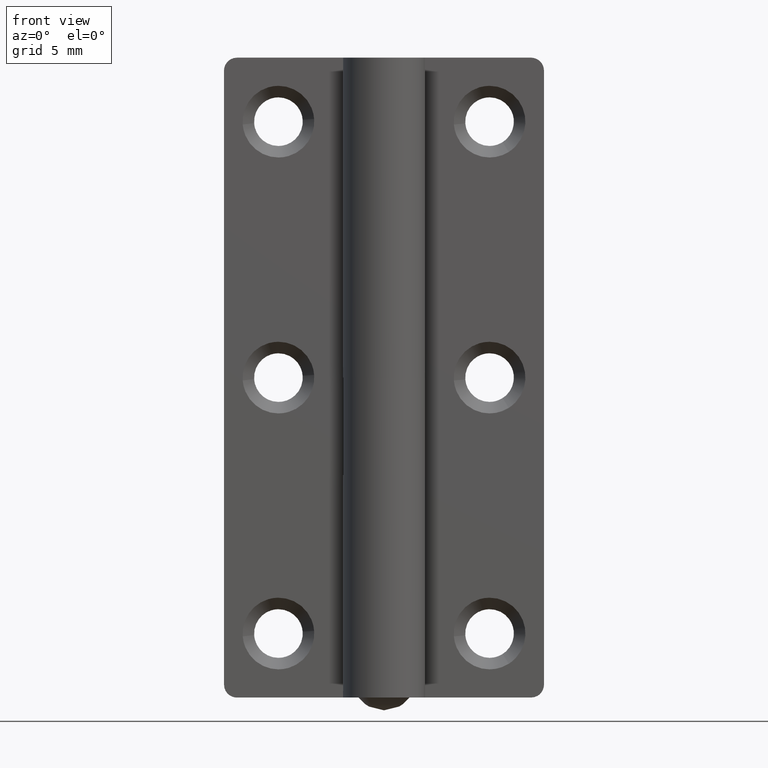
[diagram: clean part render]
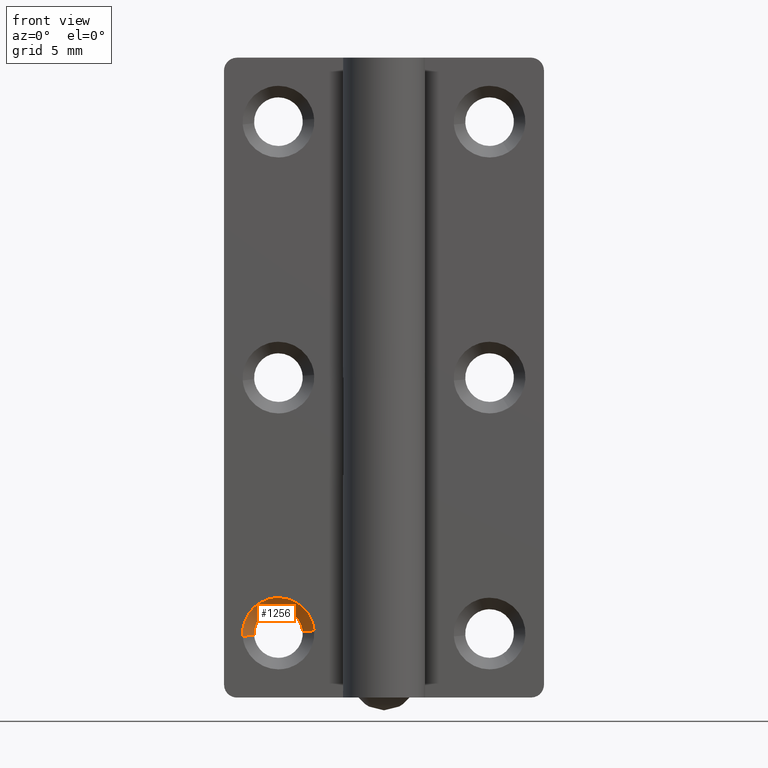
[diagram: same view with one face highlighted and labeled with its STEP entity id]
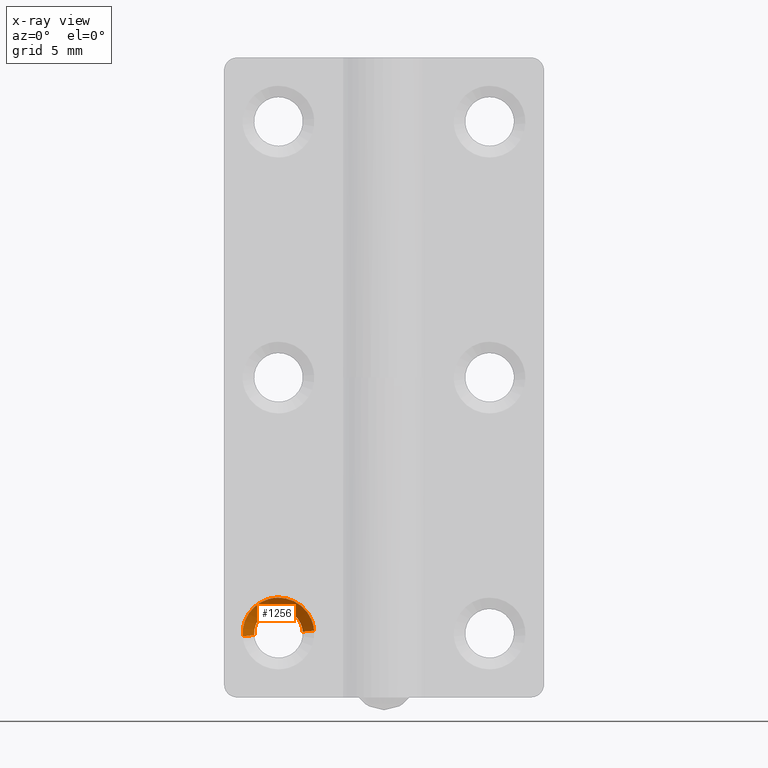
[diagram: x-ray of the same camera — body ghosted, the highlighted face saturated]
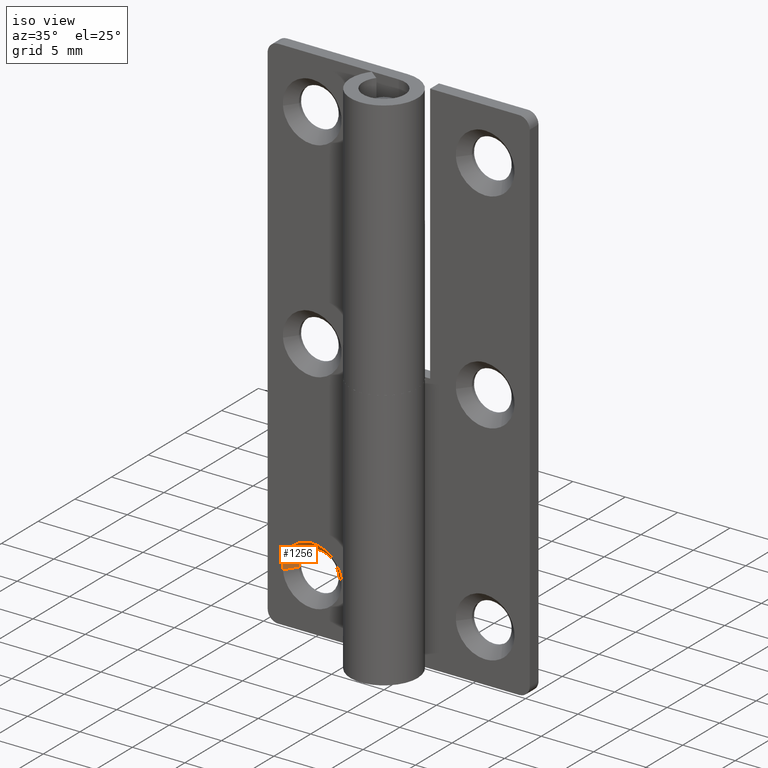
[diagram: same view with one face highlighted and labeled with its STEP entity id]
A machine part, front view. The second image highlights one B-rep face of the part: STEP entity #1256.
The next image is the same camera in x-ray: the body ghosted, the highlighted face saturated — about 0% of this face is hidden behind the body in this view.
A second angle (iso view) of the same face is appended — the face is thin or edge-on in the first view.
In plain terms, the highlighted face is a freeform B-spline surface patch.
Its self-contained STEP definition (entity closure, byte-faithful):
#1061=CARTESIAN_POINT('',(-10.146456069078599,2.900000035762553,4.884008016516837));
#1062=VERTEX_POINT('',#1061);
#1106=CARTESIAN_POINT('',(-6.355857149095421,2.900000035760563,5.149072275352674));
#1107=VERTEX_POINT('',#1106);
#1123=CARTESIAN_POINT('',(-8.250000000000000,2.900000035762786,6.899999916553500));
#1124=VERTEX_POINT('',#1123);
#1125=CARTESIAN_POINT('',(-8.250000000000000,2.900000035762786,6.899999916553500));
#1126=CARTESIAN_POINT('',(-6.493658143017682,2.900000035762786,6.899999916553500));
#1127=CARTESIAN_POINT('',(-6.355857149095423,2.900000035760563,5.149072275352675));
#1135=(BOUNDED_CURVE()B_SPLINE_CURVE(2,(#1125,#1126,#1127),.UNSPECIFIED.,.F.,.U.)B_SPLINE_CURVE_WITH_KNOTS((3,3),(0.0,0.236331300629739),.UNSPECIFIED.)CURVE()GEOMETRIC_REPRESENTATION_ITEM()RATIONAL_B_SPLINE_CURVE((1.0,0.723120658608745,0.969723356165495))REPRESENTATION_ITEM(''));
#1136=EDGE_CURVE('',#1124,#1107,#1135,.T.);
#1138=CARTESIAN_POINT('',(-10.146456069078603,2.900000035762553,4.884008016516837));
#1139=CARTESIAN_POINT('',(-10.149999916553496,2.900000035762786,4.941949871521777));
#1140=CARTESIAN_POINT('',(-10.149999916553501,2.900000035762786,5.0));
#1141=CARTESIAN_POINT('',(-10.149999916553499,2.900000035762785,6.899999916553499));
#1142=CARTESIAN_POINT('',(-8.250000000000000,2.900000035762786,6.899999916553500));
#1150=(BOUNDED_CURVE()B_SPLINE_CURVE(2,(#1138,#1139,#1140,#1141,#1142),.UNSPECIFIED.,.F.,.U.)B_SPLINE_CURVE_WITH_KNOTS((3,2,3),(0.739332983879041,0.750000000000000,1.0),.UNSPECIFIED.)CURVE()GEOMETRIC_REPRESENTATION_ITEM()RATIONAL_B_SPLINE_CURVE((0.976072088045573,0.987502813252790,1.0,0.707106781186548,1.0))REPRESENTATION_ITEM(''));
#1151=EDGE_CURVE('',#1062,#1124,#1150,.T.);
#1190=CARTESIAN_POINT('',(-6.378287789996629,2.922500036656856,5.147306945611745));
#1191=CARTESIAN_POINT('',(-6.525594735608376,2.922500036656857,7.019019155615116));
#1192=CARTESIAN_POINT('',(-8.397306945611746,2.922500036656856,6.871712210003371));
#1193=CARTESIAN_POINT('',(-10.269019155615117,2.922500036656857,6.724405264391626));
#1194=CARTESIAN_POINT('',(-10.121712210003370,2.922500036656856,4.852693054388255));
#1195=CARTESIAN_POINT('',(-5.435640106161148,1.976937499083578,5.221494927263872));
#1196=CARTESIAN_POINT('',(-5.657135033425020,1.976937499083579,8.035854821102724));
#1197=CARTESIAN_POINT('',(-8.471494927263871,1.976937499083578,7.814359893838852));
#1198=CARTESIAN_POINT('',(-11.285854821102722,1.976937499083579,7.592864966574981));
#1199=CARTESIAN_POINT('',(-11.064359893838850,1.976937499083578,4.778505072736128));
#1207=(BOUNDED_SURFACE()B_SPLINE_SURFACE(2,1,((#1190,#1195),(#1191,#1196),(#1192,#1197),(#1193,#1198),(#1194,#1199)),.UNSPECIFIED.,.F.,.F.,.U.)B_SPLINE_SURFACE_WITH_KNOTS((3,2,3),(2,2),(0.0,4.677403022220994,9.354806044441988),(0.0,1.0),.UNSPECIFIED.)GEOMETRIC_REPRESENTATION_ITEM()RATIONAL_B_SPLINE_SURFACE(((1.0,1.0),(0.707106781186548,0.707106781186548),(1.0,1.0),(0.707106781186548,0.707106781186548),(1.0,1.0)))REPRESENTATION_ITEM('')SURFACE());
#1208=ORIENTED_EDGE('',*,*,#1136,.T.);
#1209=CARTESIAN_POINT('',(-5.458631513073850,1.999999999974804,5.219685464489362));
#1210=VERTEX_POINT('',#1209);
#1211=CARTESIAN_POINT('',(-6.355857149095421,2.900000035760563,5.149072275352674));
#1212=CARTESIAN_POINT('',(-5.458631513073850,1.999999999974804,5.219685464489362));
#1213=QUASI_UNIFORM_CURVE('',1,(#1211,#1212),.UNSPECIFIED.,.F.,.U.);
#1214=EDGE_CURVE('',#1107,#1210,#1213,.T.);
#1215=ORIENTED_EDGE('',*,*,#1214,.T.);
#1216=CARTESIAN_POINT('',(-8.250000000000000,2.0,7.799999952316285));
#1217=VERTEX_POINT('',#1216);
#1218=CARTESIAN_POINT('',(-8.250000000000000,2.0,7.799999952316285));
#1219=CARTESIAN_POINT('',(-5.661706667790027,2.000000000000000,7.799999952316285));
#1220=CARTESIAN_POINT('',(-5.458631513073850,1.999999999974804,5.219685464489362));
#1228=(BOUNDED_CURVE()B_SPLINE_CURVE(2,(#1218,#1219,#1220),.UNSPECIFIED.,.F.,.U.)B_SPLINE_CURVE_WITH_KNOTS((3,3),(0.0,0.236331300609352),.UNSPECIFIED.)CURVE()GEOMETRIC_REPRESENTATION_ITEM()RATIONAL_B_SPLINE_CURVE((1.0,0.723120658632629,0.969723356122949))REPRESENTATION_ITEM(''));
#1229=EDGE_CURVE('',#1217,#1210,#1228,.T.);
#1230=ORIENTED_EDGE('',*,*,#1229,.F.);
#1231=CARTESIAN_POINT('',(-11.041368486926149,1.999999999974804,4.780314535510637));
#1232=VERTEX_POINT('',#1231);
#1233=CARTESIAN_POINT('',(-11.041368486926151,1.999999999974804,4.780314535510637));
#1234=CARTESIAN_POINT('',(-11.049999952316284,2.0,4.889987702060498));
#1235=CARTESIAN_POINT('',(-11.049999952316290,2.0,5.0));
#1236=CARTESIAN_POINT('',(-11.049999952316288,2.0,7.799999952316285));
#1237=CARTESIAN_POINT('',(-8.250000000000000,2.0,7.799999952316285));
#1245=(BOUNDED_CURVE()B_SPLINE_CURVE(2,(#1233,#1234,#1235,#1236,#1237),.UNSPECIFIED.,.F.,.U.)B_SPLINE_CURVE_WITH_KNOTS((3,2,3),(0.736331300609352,0.750000000000000,1.0),.UNSPECIFIED.)CURVE()GEOMETRIC_REPRESENTATION_ITEM()RATIONAL_B_SPLINE_CURVE((0.969723356122949,0.983986122553918,1.0,0.707106781186547,1.0))REPRESENTATION_ITEM(''));
#1246=EDGE_CURVE('',#1232,#1217,#1245,.T.);
#1247=ORIENTED_EDGE('',*,*,#1246,.F.);
#1248=CARTESIAN_POINT('',(-10.146456069078599,2.900000035762553,4.884008016516837));
#1249=CARTESIAN_POINT('',(-11.041368486926149,1.999999999974804,4.780314535510637));
#1250=QUASI_UNIFORM_CURVE('',1,(#1248,#1249),.UNSPECIFIED.,.F.,.U.);
#1251=EDGE_CURVE('',#1062,#1232,#1250,.T.);
#1252=ORIENTED_EDGE('',*,*,#1251,.F.);
#1253=ORIENTED_EDGE('',*,*,#1151,.T.);
#1254=EDGE_LOOP('',(#1208,#1215,#1230,#1247,#1252,#1253));
#1255=FACE_OUTER_BOUND('',#1254,.T.);
#1256=ADVANCED_FACE('',(#1255),#1207,.F.);